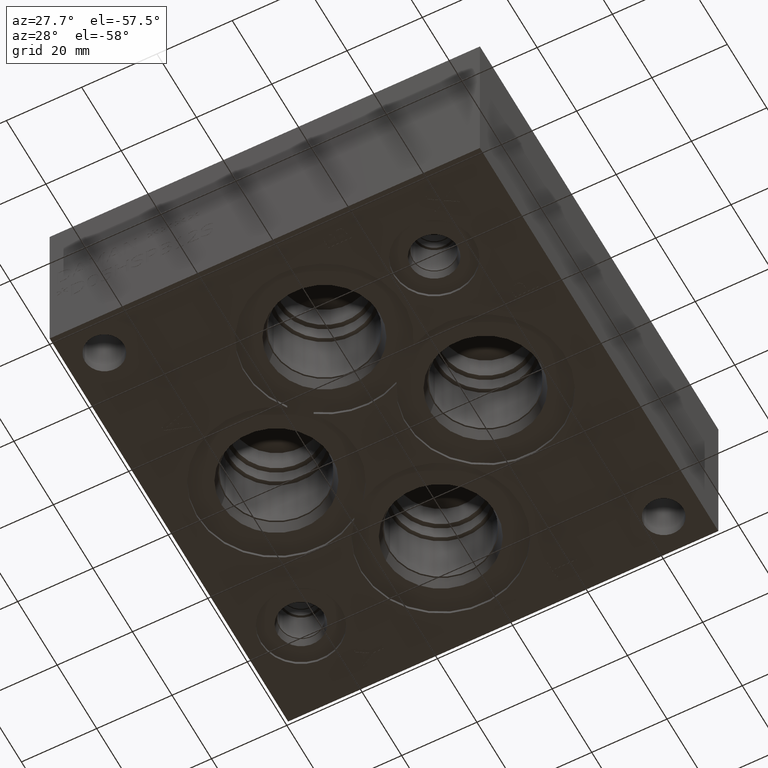
[diagram: clean part render]
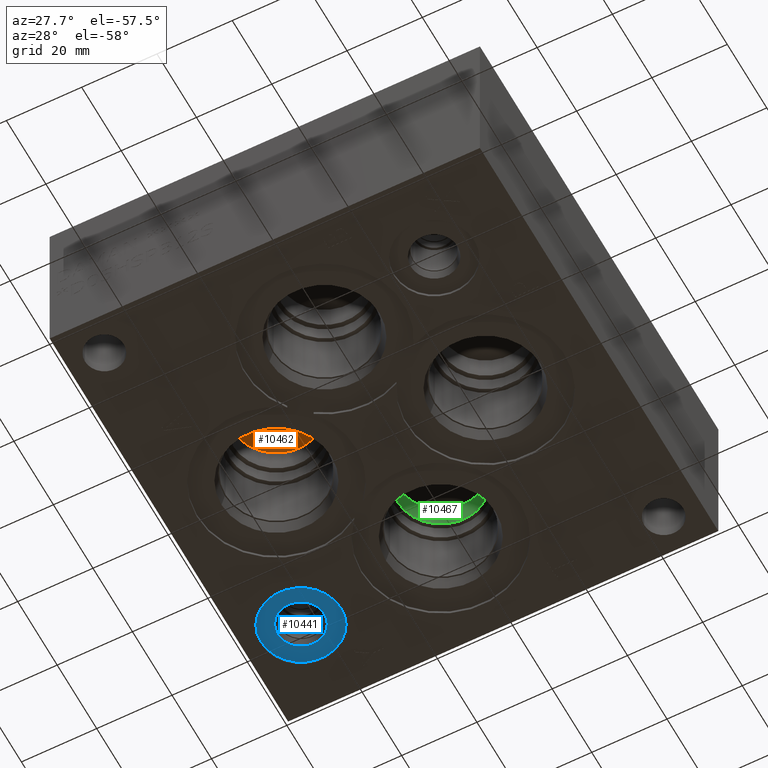
[diagram: same view with three faces highlighted in distinct colors, each labeled with its STEP entity id]
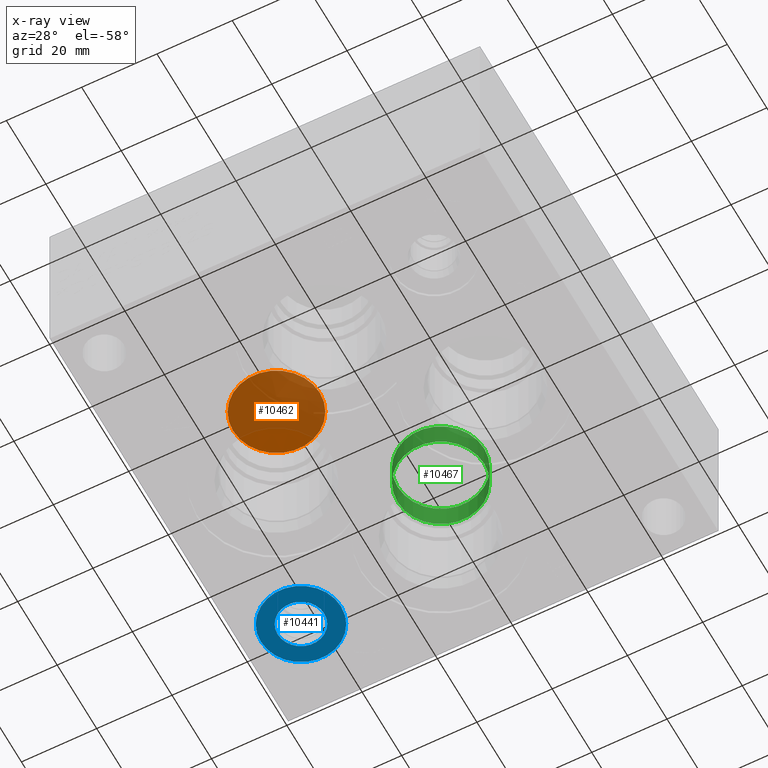
[diagram: x-ray of the same camera — body ghosted, the three highlighted faces saturated]
A machine part, auxiliary view with three faces highlighted in distinct colors.
The next image is the same camera in x-ray (body ghosted, the three faces saturated) — at least one of them is partly hidden behind the body in this view.
Their STEP definitions:

[orange] entity #10462 — the highlighted conical surface has half-angle 60 deg.
#29=CONICAL_SURFACE('',#10957,5.7531,1.0471975511966);
#170=CIRCLE('',#10958,11.5062);
#171=CIRCLE('',#10959,11.5062);
#1197=FACE_OUTER_BOUND('',#1784,.T.);
#1784=EDGE_LOOP('',(#8923,#8924,#8925,#8926));
#2838=LINE('',#17621,#3859);
#3859=VECTOR('',#12923,5.7531);
#4786=VERTEX_POINT('',#17617);
#4787=VERTEX_POINT('',#17618);
#4788=VERTEX_POINT('',#17620);
#6196=EDGE_CURVE('',#4786,#4787,#170,.T.);
#6197=EDGE_CURVE('',#4787,#4788,#2838,.T.);
#6198=EDGE_CURVE('',#4787,#4786,#171,.T.);
#8923=ORIENTED_EDGE('',*,*,#6196,.T.);
#8924=ORIENTED_EDGE('',*,*,#6197,.T.);
#8925=ORIENTED_EDGE('',*,*,#6197,.F.);
#8926=ORIENTED_EDGE('',*,*,#6198,.T.);
#10462=ADVANCED_FACE('',(#1197),#29,.F.);
#10957=AXIS2_PLACEMENT_3D('',#17616,#12919,#12920);
#10958=AXIS2_PLACEMENT_3D('',#17619,#12921,#12922);
#10959=AXIS2_PLACEMENT_3D('',#17622,#12924,#12925);
#12919=DIRECTION('center_axis',(0.,0.,-1.));
#12920=DIRECTION('ref_axis',(1.,0.,0.));
#12921=DIRECTION('center_axis',(0.,0.,-1.));
#12922=DIRECTION('ref_axis',(1.,0.,0.));
#12923=DIRECTION('',(0.866025403784439,-1.06057523872491E-16,0.5));
#12924=DIRECTION('center_axis',(0.,0.,-1.));
#12925=DIRECTION('ref_axis',(1.,0.,0.));
#17616=CARTESIAN_POINT('Origin',(28.575,60.325,34.1885438336748));
#17617=CARTESIAN_POINT('',(40.0812,60.325,30.86699));
#17618=CARTESIAN_POINT('',(17.0688,60.325,30.86699));
#17619=CARTESIAN_POINT('Origin',(28.575,60.325,30.86699));
#17620=CARTESIAN_POINT('',(28.575,60.325,37.5100976673497));
#17621=CARTESIAN_POINT('',(22.8219,60.325,34.1885438336748));
#17622=CARTESIAN_POINT('Origin',(28.575,60.325,30.86699));

[blue] entity #10441 — the highlighted planar face has unit normal (0, 0, 1).
#132=CIRCLE('',#10898,10.6426);
#133=CIRCLE('',#10899,10.6426);
#134=CIRCLE('',#10901,6.1976);
#135=CIRCLE('',#10902,6.1976);
#312=FACE_BOUND('',#1759,.T.);
#1176=FACE_OUTER_BOUND('',#1758,.T.);
#1758=EDGE_LOOP('',(#8811,#8812));
#1759=EDGE_LOOP('',(#8813,#8814));
#4747=VERTEX_POINT('',#17498);
#4748=VERTEX_POINT('',#17500);
#4749=VERTEX_POINT('',#17504);
#4750=VERTEX_POINT('',#17505);
#6139=EDGE_CURVE('',#4747,#4748,#132,.T.);
#6140=EDGE_CURVE('',#4748,#4747,#133,.T.);
#6141=EDGE_CURVE('',#4749,#4750,#134,.T.);
#6142=EDGE_CURVE('',#4750,#4749,#135,.T.);
#8811=ORIENTED_EDGE('',*,*,#6140,.F.);
#8812=ORIENTED_EDGE('',*,*,#6139,.F.);
#8813=ORIENTED_EDGE('',*,*,#6141,.T.);
#8814=ORIENTED_EDGE('',*,*,#6142,.T.);
#9551=PLANE('',#10900);
#10441=ADVANCED_FACE('',(#1176,#312),#9551,.F.);
#10898=AXIS2_PLACEMENT_3D('',#17501,#12782,#12783);
#10899=AXIS2_PLACEMENT_3D('',#17502,#12784,#12785);
#10900=AXIS2_PLACEMENT_3D('',#17503,#12786,#12787);
#10901=AXIS2_PLACEMENT_3D('',#17506,#12788,#12789);
#10902=AXIS2_PLACEMENT_3D('',#17507,#12790,#12791);
#12782=DIRECTION('center_axis',(0.,0.,1.));
#12783=DIRECTION('ref_axis',(1.,0.,0.));
#12784=DIRECTION('center_axis',(0.,0.,1.));
#12785=DIRECTION('ref_axis',(1.,0.,0.));
#12786=DIRECTION('center_axis',(0.,0.,1.));
#12787=DIRECTION('ref_axis',(1.,0.,0.));
#12788=DIRECTION('center_axis',(0.,0.,1.));
#12789=DIRECTION('ref_axis',(1.,0.,0.));
#12790=DIRECTION('center_axis',(0.,0.,1.));
#12791=DIRECTION('ref_axis',(1.,0.,0.));
#17498=CARTESIAN_POINT('',(4.445,98.425,0.7874));
#17500=CARTESIAN_POINT('',(25.7302,98.425,0.7874));
#17501=CARTESIAN_POINT('Origin',(15.0876,98.425,0.7874));
#17502=CARTESIAN_POINT('Origin',(15.0876,98.425,0.7874));
#17503=CARTESIAN_POINT('Origin',(21.2852,98.425,0.7874));
#17504=CARTESIAN_POINT('',(21.2852,98.425,0.7874));
#17505=CARTESIAN_POINT('',(8.89,98.425,0.787399999999999));
#17506=CARTESIAN_POINT('Origin',(15.0876,98.425,0.7874));
#17507=CARTESIAN_POINT('Origin',(15.0876,98.425,0.7874));

[green] entity #10467 — the highlighted cylindrical surface (bore or boss wall) has radius 11.5062 mm, axis along (0, 0, -1).
#67=CYLINDRICAL_SURFACE('',#10970,11.5062);
#176=CIRCLE('',#10968,11.5062);
#177=CIRCLE('',#10969,11.5062);
#178=CIRCLE('',#10971,11.5062);
#1202=FACE_OUTER_BOUND('',#1789,.T.);
#1789=EDGE_LOOP('',(#8945,#8946,#8947,#8948,#8949));
#2843=LINE('',#17648,#3864);
#3864=VECTOR('',#12954,11.5062);
#4794=VERTEX_POINT('',#17639);
#4795=VERTEX_POINT('',#17640);
#4797=VERTEX_POINT('',#17646);
#6206=EDGE_CURVE('',#4794,#4795,#176,.T.);
#6208=EDGE_CURVE('',#4795,#4794,#177,.T.);
#6209=EDGE_CURVE('',#4797,#4797,#178,.T.);
#6210=EDGE_CURVE('',#4797,#4795,#2843,.T.);
#8945=ORIENTED_EDGE('',*,*,#6209,.F.);
#8946=ORIENTED_EDGE('',*,*,#6210,.T.);
#8947=ORIENTED_EDGE('',*,*,#6206,.F.);
#8948=ORIENTED_EDGE('',*,*,#6208,.F.);
#8949=ORIENTED_EDGE('',*,*,#6210,.F.);
#10467=ADVANCED_FACE('',(#1202),#67,.F.);
#10968=AXIS2_PLACEMENT_3D('',#17641,#12945,#12946);
#10969=AXIS2_PLACEMENT_3D('',#17644,#12948,#12949);
#10970=AXIS2_PLACEMENT_3D('',#17645,#12950,#12951);
#10971=AXIS2_PLACEMENT_3D('',#17647,#12952,#12953);
#12945=DIRECTION('center_axis',(0.,0.,-1.));
#12946=DIRECTION('ref_axis',(1.,0.,0.));
#12948=DIRECTION('center_axis',(0.,0.,-1.));
#12949=DIRECTION('ref_axis',(1.,0.,0.));
#12950=DIRECTION('center_axis',(0.,0.,-1.));
#12951=DIRECTION('ref_axis',(1.,0.,0.));
#12952=DIRECTION('center_axis',(0.,0.,1.));
#12953=DIRECTION('ref_axis',(1.,0.,0.));
#12954=DIRECTION('',(0.,0.,1.));
#17639=CARTESIAN_POINT('',(67.0814,92.075,30.86699));
#17640=CARTESIAN_POINT('',(44.069,92.075,30.86699));
#17641=CARTESIAN_POINT('Origin',(55.5752,92.075,30.86699));
#17644=CARTESIAN_POINT('Origin',(55.5752,92.075,30.86699));
#17645=CARTESIAN_POINT('Origin',(55.5752,92.075,15.433495));
#17646=CARTESIAN_POINT('',(44.069,92.075,24.2238803227564));
#17647=CARTESIAN_POINT('Origin',(55.5752,92.075,24.2238803227564));
#17648=CARTESIAN_POINT('',(44.069,92.075,15.433495));